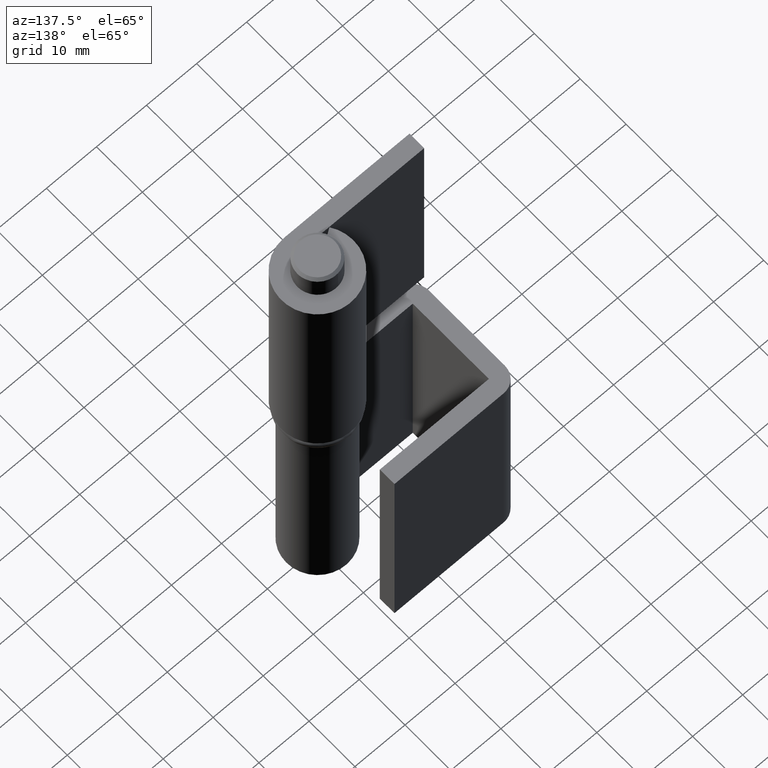
[diagram: clean part render]
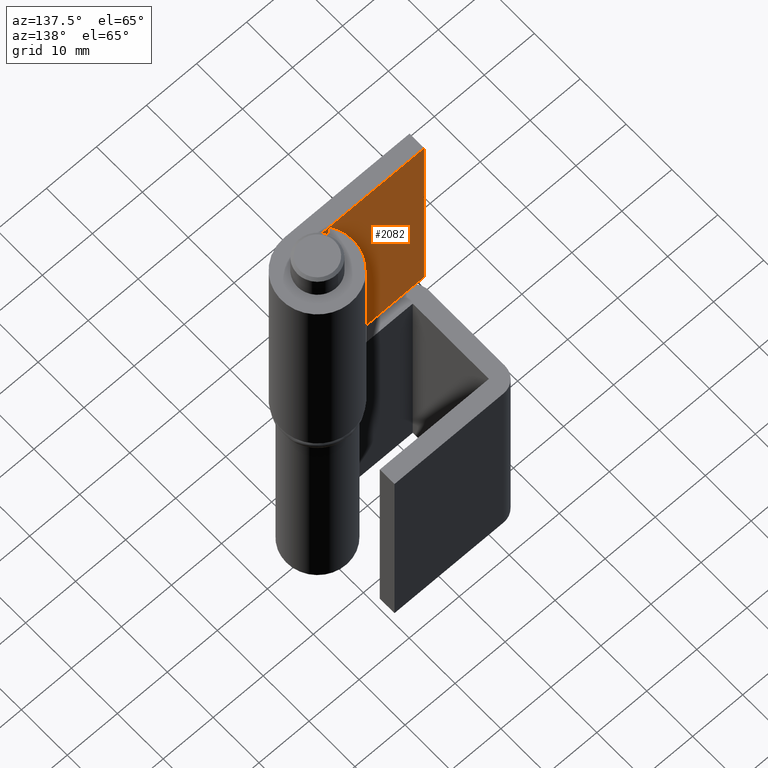
[diagram: same view with one face highlighted and labeled with its STEP entity id]
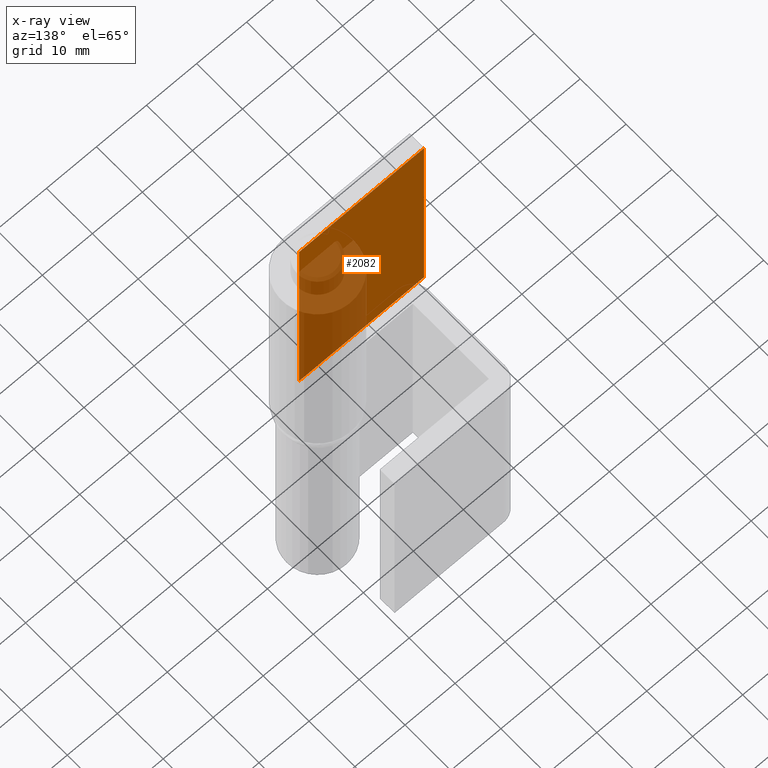
[diagram: x-ray of the same camera — body ghosted, the highlighted face saturated]
A machine part, auxiliary view. The second image highlights one B-rep face of the part: STEP entity #2082.
The next image is the same camera in x-ray: the body ghosted, the highlighted face saturated — about 42% of this face is hidden behind the body in this view.
In plain terms, the highlighted face is a freeform B-spline surface patch.
Its self-contained STEP definition (entity closure, byte-faithful):
#1867=CARTESIAN_POINT('',(4.898425E-016,-4.0,95.0));
#1868=VERTEX_POINT('',#1867);
#1888=CARTESIAN_POINT('',(-25.0,-4.0,95.0));
#1889=VERTEX_POINT('',#1888);
#1890=CARTESIAN_POINT('',(-25.0,-4.0,95.0));
#1891=CARTESIAN_POINT('',(4.898425E-016,-4.0,95.0));
#1892=QUASI_UNIFORM_CURVE('',1,(#1890,#1891),.UNSPECIFIED.,.F.,.U.);
#1893=EDGE_CURVE('',#1889,#1868,#1892,.T.);
#1917=CARTESIAN_POINT('',(-25.0,-4.0,50.0));
#1918=VERTEX_POINT('',#1917);
#1924=CARTESIAN_POINT('',(4.898425E-016,-4.0,50.0));
#1925=VERTEX_POINT('',#1924);
#1926=CARTESIAN_POINT('',(-25.0,-4.0,50.0));
#1927=CARTESIAN_POINT('',(4.898425E-016,-4.0,50.0));
#1928=QUASI_UNIFORM_CURVE('',1,(#1926,#1927),.UNSPECIFIED.,.F.,.U.);
#1929=EDGE_CURVE('',#1918,#1925,#1928,.T.);
#2059=CARTESIAN_POINT('',(4.898425E-016,-4.0,50.0));
#2060=CARTESIAN_POINT('',(4.898425E-016,-4.0,95.0));
#2061=QUASI_UNIFORM_CURVE('',1,(#2059,#2060),.UNSPECIFIED.,.F.,.U.);
#2062=EDGE_CURVE('',#1925,#1868,#2061,.T.);
#2067=CARTESIAN_POINT('',(-26.248749951545150,-4.0,97.247749912781273));
#2068=CARTESIAN_POINT('',(-26.248749951545150,-4.0,47.752248880224677));
#2069=CARTESIAN_POINT('',(1.248750622097401,-4.0,97.247749912781273));
#2070=CARTESIAN_POINT('',(1.248750622097401,-4.0,47.752248880224677));
#2071=B_SPLINE_SURFACE_WITH_KNOTS('',1,1,((#2067,#2069),(#2068,#2070)),.UNSPECIFIED.,.F.,.F.,.U.,(2,2),(2,2),(0.0,49.495501032556589),(0.0,27.497500573642551),.UNSPECIFIED.);
#2072=ORIENTED_EDGE('',*,*,#1893,.T.);
#2073=ORIENTED_EDGE('',*,*,#2062,.F.);
#2074=ORIENTED_EDGE('',*,*,#1929,.F.);
#2075=CARTESIAN_POINT('',(-25.0,-4.0,50.0));
#2076=CARTESIAN_POINT('',(-25.0,-4.0,95.0));
#2077=QUASI_UNIFORM_CURVE('',1,(#2075,#2076),.UNSPECIFIED.,.F.,.U.);
#2078=EDGE_CURVE('',#1918,#1889,#2077,.T.);
#2079=ORIENTED_EDGE('',*,*,#2078,.T.);
#2080=EDGE_LOOP('',(#2072,#2073,#2074,#2079));
#2081=FACE_OUTER_BOUND('',#2080,.T.);
#2082=ADVANCED_FACE('',(#2081),#2071,.F.);